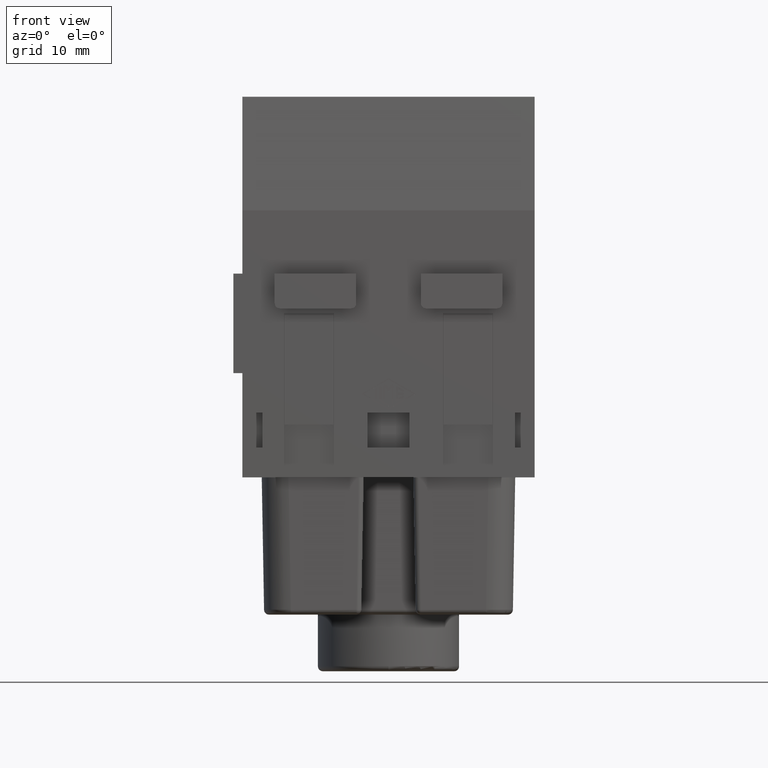
[diagram: clean part render]
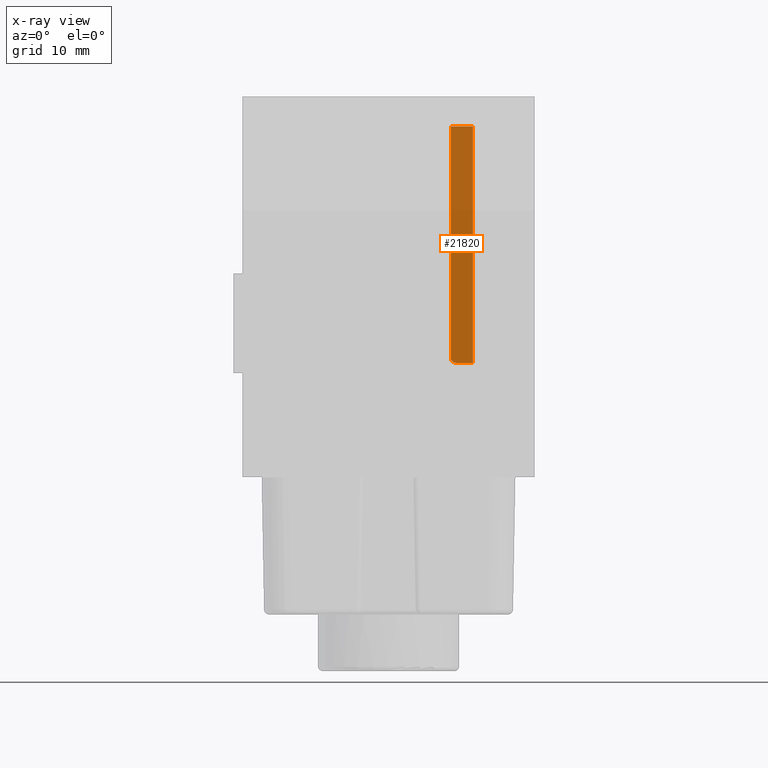
[diagram: x-ray — body ghosted, one internal face saturated and labeled with its STEP entity id]
A machine part, front view, then the same camera in x-ray: the body is ghosted and one INTERNAL B-rep face — a face not visible from any outside direction — is saturated and labeled: STEP entity #21820.
In plain terms, the highlighted planar face has unit normal (0, 1, -0).
Its self-contained STEP definition (entity closure, byte-faithful):
#8240=CARTESIAN_POINT('',(41.347735,69.757183,-17.));
#8250=DIRECTION('',(-5.15166352953601E-31,-1.,2.29563088975591E-15));
#8260=DIRECTION('',(4.44246917015506E-46,-2.29563088975591E-15,-1.));
#8270=AXIS2_PLACEMENT_3D('',#8240,#8250,#8260);
#8280=TOROIDAL_SURFACE('',#8270,9.,0.5);
#8290=CARTESIAN_POINT('',(33.1662009140232,93.557183,-11.2500000000001))
;
#8300=DIRECTION('',(-2.44929359829471E-16,2.29563088975591E-15,1.));
#8310=DIRECTION('',(1.,4.71010512790723E-32,2.44929359829471E-16));
#8320=AXIS2_PLACEMENT_3D('',#8290,#8300,#8310);
#8330=PLANE('',#8320);
#8340=CARTESIAN_POINT('',(35.0877429872255,69.757183,-11.2500000000001))
;
#8350=CARTESIAN_POINT('',(35.0877429872255,69.7475834851317,
-11.2500000000001));
#8360=CARTESIAN_POINT('',(35.0873667685233,69.7379784028398,
-11.2500000000001));
#8370=CARTESIAN_POINT('',(35.0866180864783,69.7284114355196,
-11.2500000000001));
#8380=CARTESIAN_POINT('',(35.0858694001074,69.7188444129231,
-11.2500000000001));
#8390=CARTESIAN_POINT('',(35.0847483907246,69.7093166325229,
-11.2500000000001));
#8400=CARTESIAN_POINT('',(35.0832686784616,69.6998692194562,
-11.2500000000001));
#8410=CARTESIAN_POINT('',(35.0817889011258,69.6904213909247,
-11.2500000000001));
#8420=CARTESIAN_POINT('',(35.0799509483019,69.6810560792771,
-11.2500000000001));
#8430=CARTESIAN_POINT('',(35.0777756590315,69.671805119324,
-11.2500000000001));
#8440=CARTESIAN_POINT('',(35.0755990329862,69.6625484744024,
-11.2500000000001));
#8450=CARTESIAN_POINT('',(35.0730717805566,69.6533510457465,
-11.2500000000001));
#8460=CARTESIAN_POINT('',(35.0702067876477,69.6442399328408,
-11.2500000000001));
#8470=CARTESIAN_POINT('',(35.0673418222712,69.6351289074921,
-11.2500000000001));
#8480=CARTESIAN_POINT('',(35.0641392695649,69.6261048165874,
-11.2500000000001));
#8490=CARTESIAN_POINT('',(35.060618208042,69.6171955648562,
-11.2500000000001));
#8500=CARTESIAN_POINT('',(35.0570971587916,69.6082863441775,
-11.2500000000001));
#8510=CARTESIAN_POINT('',(35.053257828846,69.5994925299845,-11.25));
#8520=CARTESIAN_POINT('',(35.0491250587113,69.5908406459788,-11.25));
#8530=CARTESIAN_POINT('',(35.0449922818064,69.5821887477997,-11.25));
#8540=CARTESIAN_POINT('',(35.0405663314938,69.5736792589178,
-11.2500000000001));
#8550=CARTESIAN_POINT('',(35.0358767963954,69.5653357323987,
-11.2500000000001));
#8560=CARTESIAN_POINT('',(35.0311872327736,69.5569921551313,
-11.2500000000001));
#8570=CARTESIAN_POINT('',(35.0262343597166,69.5488149191926,
-11.2500000000001));
#8580=CARTESIAN_POINT('',(35.0210511452792,69.5408235390996,
-11.2500000000001));
#8590=CARTESIAN_POINT('',(35.0107013949864,69.5248664936298,
-11.2500000000001));
#8600=CARTESIAN_POINT('',(34.9993597964561,69.509532327602,-11.25));
#8610=CARTESIAN_POINT('',(34.9871461729507,69.4948327522545,-11.25));
#8620=CARTESIAN_POINT('',(34.9749355505754,69.4801367888848,-11.25));
#8630=CARTESIAN_POINT('',(34.9618661125941,69.4660947008424,
-11.2499999999998));
#8640=CARTESIAN_POINT('',(34.9481084240303,69.4527607852058,
-11.2499999999998));
#8650=CARTESIAN_POINT('',(34.9343506988738,69.4394268341037,
-11.2499999999998));
#8660=CARTESIAN_POINT('',(34.9199069589131,69.426803278069,
-11.2500000000001));
#8670=CARTESIAN_POINT('',(34.9049612274397,69.4149277778064,
-11.2500000000001));
#8680=CARTESIAN_POINT('',(34.8974874621238,69.4089893128922,
-11.2500000000001));
#8690=CARTESIAN_POINT('',(34.8898929662371,69.4032409933734,
-11.2500000000001));
#8700=CARTESIAN_POINT('',(34.8821890155875,69.3976765331721,
-11.2500000000001));
#8710=CARTESIAN_POINT('',(34.8744796810601,69.3921081842681,
-11.2500000000001));
#8720=CARTESIAN_POINT('',(34.8666358946198,69.386706144056,
-11.2500000000001));
#8730=CARTESIAN_POINT('',(34.8586696944375,69.381470751444,
-11.2500000000001));
#8740=CARTESIAN_POINT('',(34.8268044136245,69.3605288654847,
-11.2500000000001));
#8750=CARTESIAN_POINT('',(34.7929804780928,69.3422554099453,-11.25));
#8760=CARTESIAN_POINT('',(34.7579721039214,69.3266745618135,-11.25));
#8770=CARTESIAN_POINT('',(34.7404683082518,69.3188843119515,-11.25));
#8780=CARTESIAN_POINT('',(34.722669657067,69.3117673993799,
-11.2500000000001));
#8790=CARTESIAN_POINT('',(34.7046754812029,69.305322103502,
-11.2500000000001));
#8800=CARTESIAN_POINT('',(34.6866771303762,69.298875312203,
-11.2500000000001));
#8810=CARTESIAN_POINT('',(34.6685020249823,69.2931059175663,
-11.2500000000001));
#8820=CARTESIAN_POINT('',(34.6501975831023,69.2879910435326,
-11.2500000000001));
#8830=CARTESIAN_POINT('',(34.6135476965087,69.2777498379006,
-11.2500000000001));
#8840=CARTESIAN_POINT('',(34.5760248458392,69.2700386144206,
-11.2500000000001));
#8850=CARTESIAN_POINT('',(34.5381538388379,69.2648963969079,
-11.2500000000001));
#8860=CARTESIAN_POINT('',(34.5002823818497,69.2597541182949,
-11.2500000000001));
#8870=CARTESIAN_POINT('',(34.4620700860191,69.257183,-11.2500000000001))
;
#8880=CARTESIAN_POINT('',(34.4240437879368,69.257183,-11.2500000000001))
;
#8890=B_SPLINE_CURVE_WITH_KNOTS('',3,(#8340,#8350,#8360,#8370,#8380,
#8390,#8400,#8410,#8420,#8430,#8440,#8450,#8460,#8470,#8480,#8490,#8500,
#8510,#8520,#8530,#8540,#8550,#8560,#8570,#8580,#8590,#8600,#8610,#8620,
#8630,#8640,#8650,#8660,#8670,#8680,#8690,#8700,#8710,#8720,#8730,#8740,
#8750,#8760,#8770,#8780,#8790,#8800,#8810,#8820,#8830,#8840,#8850,#8860,
#8870,#8880),.UNSPECIFIED.,.F.,.F.,(4,3,3,3,3,3,3,3,3,3,3,3,3,3,3,3,3,3,
4),(0.,0.0288008653597923,0.057546084646572,0.0861495179473373,
0.114741429885009,0.143441458490747,0.172199147959171,0.200944945277241,
0.229596680962139,0.286767337219549,0.344188456959183,0.401596398622323,
0.430167754265687,0.458732034308897,0.573499847418301,0.630928014739791,
0.688108417166164,0.802597760844722,0.917055053458787),.UNSPECIFIED.);
#8900=SURFACE_CURVE('',#8890,(#8280,#8330),.CURVE_3D.);
#8910=CARTESIAN_POINT('',(35.0877429872255,69.757183,-11.2500000000001))
;
#8920=VERTEX_POINT('',#8910);
#8930=CARTESIAN_POINT('',(34.4240437879368,69.257183,-11.2500000000001))
;
#8940=VERTEX_POINT('',#8930);
#8950=EDGE_CURVE('',#8920,#8940,#8900,.T.);
#21490=CARTESIAN_POINT('',(30.712365,93.0571829999999,-11.2500000000001)
);
#21500=DIRECTION('',(-1.,2.71926214689378E-32,-2.44929359829471E-16));
#21510=VECTOR('',#21500,1.);
#21520=LINE('',#21490,#21510);
#21530=CARTESIAN_POINT('',(35.0877429872255,93.057183,-11.2500000000001)
);
#21540=VERTEX_POINT('',#21530);
#21550=CARTESIAN_POINT('',(32.8624536257625,93.057183,-11.2500000000001)
);
#21560=VERTEX_POINT('',#21550);
#21570=EDGE_CURVE('',#21540,#21560,#21520,.T.);
#21580=ORIENTED_EDGE('',*,*,#21570,.T.);
#21590=CARTESIAN_POINT('',(35.0877429872255,93.557183,-11.2500000000001)
);
#21600=DIRECTION('',(-5.15166352953601E-31,-1.,2.29563088975591E-15));
#21610=VECTOR('',#21600,1.);
#21620=LINE('',#21590,#21610);
#21630=EDGE_CURVE('',#21540,#8920,#21620,.T.);
#21640=ORIENTED_EDGE('',*,*,#21630,.F.);
#21650=ORIENTED_EDGE('',*,*,#8950,.F.);
#21660=CARTESIAN_POINT('',(30.712365,69.257183,-11.2500000000001));
#21670=DIRECTION('',(1.,2.21111851073754E-32,2.44929359829471E-16));
#21680=VECTOR('',#21670,1.);
#21690=LINE('',#21660,#21680);
#21700=CARTESIAN_POINT('',(32.8624536257624,69.257183,-11.25));
#21710=VERTEX_POINT('',#21700);
#21720=EDGE_CURVE('',#21710,#8940,#21690,.T.);
#21730=ORIENTED_EDGE('',*,*,#21720,.T.);
#21740=CARTESIAN_POINT('',(32.8624536257624,66.257183,-11.25));
#21750=DIRECTION('',(-5.86935178071345E-30,-1.,9.95967967626125E-15));
#21760=VECTOR('',#21750,1.);
#21770=LINE('',#21740,#21760);
#21780=EDGE_CURVE('',#21560,#21710,#21770,.T.);
#21790=ORIENTED_EDGE('',*,*,#21780,.T.);
#21800=EDGE_LOOP('',(#21790,#21730,#21650,#21640,#21580));
#21810=FACE_OUTER_BOUND('',#21800,.T.);
#21820=ADVANCED_FACE('',(#21810),#8330,.T.);